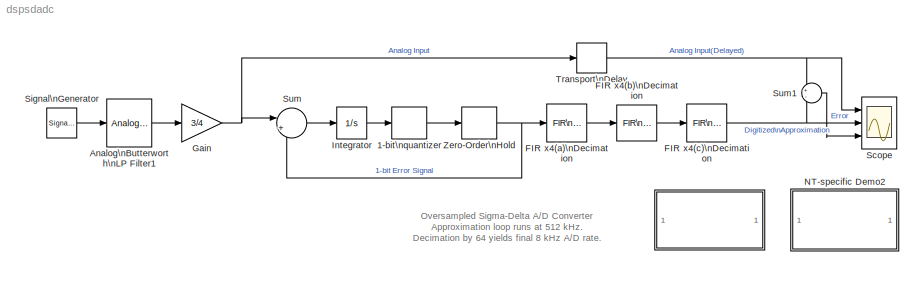
MODEL dspsdadc
KIND model
BLOCK [SubSystem]  
  MaskDisplay = disp('Info')
  MaskIconFrame = on
  MaskIconOpaque = on
  MaskIconRotate = none
  MaskIconUnits = autoscale
  MaskType = Sigma-delta demo Info block
  Ports = []
  TreatAsAtomicUnit = off
BLOCK [Signum] 1-bit\nquantizer
BLOCK [Reference] Analog\nButterworth\nLP Filter1  REF=dspddes2/Analog\nFilter Design
  N = 5
  Ports = [1, 1]
  Rp = 3
  Rs = 40
  ShowPortLabels = on
  SourceBlock = dspddes2/Analog\nFilter Design
  SourceType = Analog Filter Design
  Whi = 80
  Wlo = 2*pi*400
  filttype = Lowpass
  method = Butterworth
BLOCK [Reference] FIR x4(a)\nDecimation  REF=dspmlti3/FIR\nDecimation
  D = 4
  Ports = [1, 1]
  SourceBlock = dspmlti3/FIR\nDecimation
  SourceType = FIR Decimation
  accumFracLength = 30
  accumMode = Same as product output
  accumWordLength = 32
  additionalParams = off
  allowOverrides = on
  firstCoeffFracLength = 15
  firstCoeffMode = Same word length as input
  firstCoeffWordLength = 16
  framing = Maintain input frame size
  h = fir1(31,0.15)
  outputBufInitCond = 0
  outputFracLength = 15
  outputMode = Same as input
  outputWordLength = 16
  overflowMode = off
  prodOutputFracLength = 30
  prodOutputMode = Same as input
  prodOutputWordLength = 32
  roundingMode = Floor
BLOCK [Reference] FIR x4(b)\nDecimation  REF=dspmlti3/FIR\nDecimation
  D = 4
  Ports = [1, 1]
  SourceBlock = dspmlti3/FIR\nDecimation
  SourceType = FIR Decimation
  accumFracLength = 30
  accumMode = Same as product output
  accumWordLength = 32
  additionalParams = off
  allowOverrides = on
  firstCoeffFracLength = 15
  firstCoeffMode = Same word length as input
  firstCoeffWordLength = 16
  framing = Maintain input frame size
  h = fir1(31,0.15)
  outputBufInitCond = 0
  outputFracLength = 15
  outputMode = Same as input
  outputWordLength = 16
  overflowMode = off
  prodOutputFracLength = 30
  prodOutputMode = Same as input
  prodOutputWordLength = 32
  roundingMode = Floor
BLOCK [Reference] FIR x4(c)\nDecimation  REF=dspmlti3/FIR\nDecimation
  D = 4
  Ports = [1, 1]
  SourceBlock = dspmlti3/FIR\nDecimation
  SourceType = FIR Decimation
  accumFracLength = 30
  accumMode = Same as product output
  accumWordLength = 32
  additionalParams = off
  allowOverrides = on
  firstCoeffFracLength = 15
  firstCoeffMode = Same word length as input
  firstCoeffWordLength = 16
  framing = Maintain input frame size
  h = fir1(31,0.15)
  outputBufInitCond = 0
  outputFracLength = 15
  outputMode = Same as input
  outputWordLength = 16
  overflowMode = off
  prodOutputFracLength = 30
  prodOutputMode = Same as input
  prodOutputWordLength = 32
  roundingMode = Floor
BLOCK [Gain] Gain
  Gain = 3/4
BLOCK [Integrator] Integrator
  Ports = [1, 1]
BLOCK [SubSystem] NT-specific Demo2
  MaskDisplay = disp('Fixed-Point\\nDemo')
  MaskIconFrame = on
  MaskIconOpaque = on
  MaskIconRotate = none
  MaskIconUnits = autoscale
  MaskType = Fixed-Point Demo
  OpenFcn = dspsdadc_fixpt
  Ports = []
  TreatAsAtomicUnit = off
BLOCK [Scope] Scope
  DataFormat = StructureWithTime
  NumInputPorts = 3
  Ports = [3]
  SaveName = ScopeData1
  TimeRange = 0.025
  YMax = 1.1~1.1~0.25
  YMin = -1.1~-1.1~-0.25
  ZoomMode = xonly
BLOCK [SignalGenerator] Signal\nGenerator
  Frequency = 80
  Ports = [0, 1]
  WaveForm = square
BLOCK [Sum] Sum
  IconShape = round
  Inputs = |+-
  Ports = [2, 1]
BLOCK [Sum] Sum1
  IconShape = round
  Inputs = +-
  Ports = [2, 1]
BLOCK [TransportDelay] Transport\nDelay
  DelayTime = 357/512000
BLOCK [ZeroOrderHold] Zero-Order\nHold
  SampleTime = 1/(512*1024)
ANNOTATION (root): Oversampled Sigma-Delta A/D Converter\nApproximation loop runs at 512 kHz.\nDecimation by 64 yields final 8 kHz A/D rate.
ANNOTATION  : Oversampled Sigma-Delta A/D Converter\n\nThe Oversampled Sigma-Delta A/D Converter is a noise-shaping quantizer. The main purpose of \nnoise-shaping is to reshape the spectrum of quantization noise so that most of the noise is filtered\n out of the relevant frequency band (say the audio band for speech applications).\n\nThe main objective here is to trade off bits for samples - that is, increasing...<+1605ch>
LINE 1-bit\nquantizer:1 -> Zero-Order\nHold:1
LINE Analog\nButterworth\nLP Filter1:1 -> Gain:1
LINE FIR x4(a)\nDecimation:1 -> FIR x4(b)\nDecimation:1
LINE FIR x4(b)\nDecimation:1 -> FIR x4(c)\nDecimation:1
NET FIR x4(c)\nDecimation:1 -> Scope:2, Sum1:2
NET Gain:1 -> Sum:1, Transport\nDelay:1
LINE Integrator:1 -> 1-bit\nquantizer:1
LINE Signal\nGenerator:1 -> Analog\nButterworth\nLP Filter1:1
LINE Sum1:1 -> Scope:3
LINE Sum:1 -> Integrator:1
NET Transport\nDelay:1 -> Scope:1, Sum1:1
NET Zero-Order\nHold:1 -> FIR x4(a)\nDecimation:1, Sum:2
note: NET lines group one-source signal fan-out (src -> all destinations, sorted); 1:1 wires keep LINE
